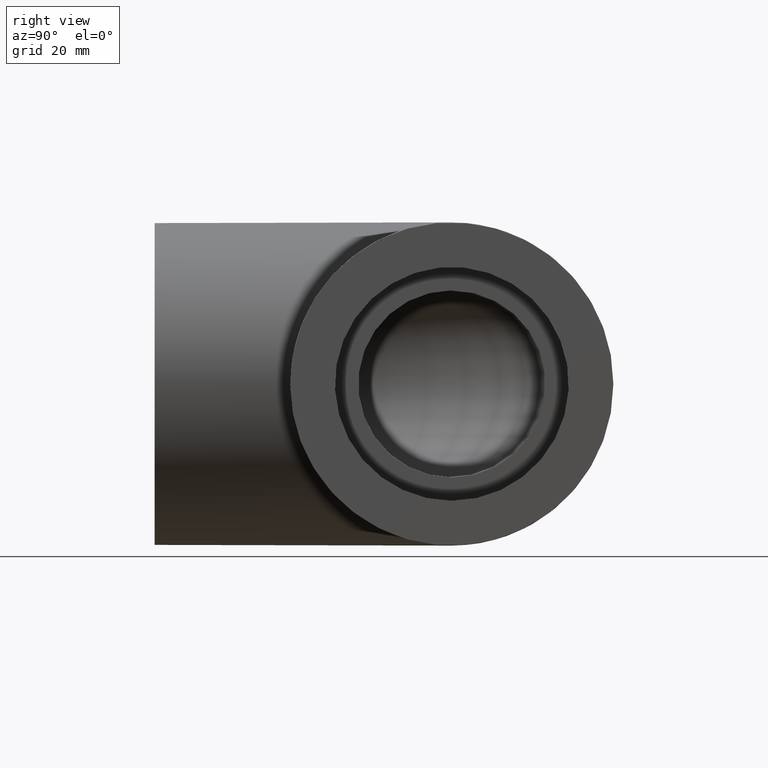
[diagram: clean part render]
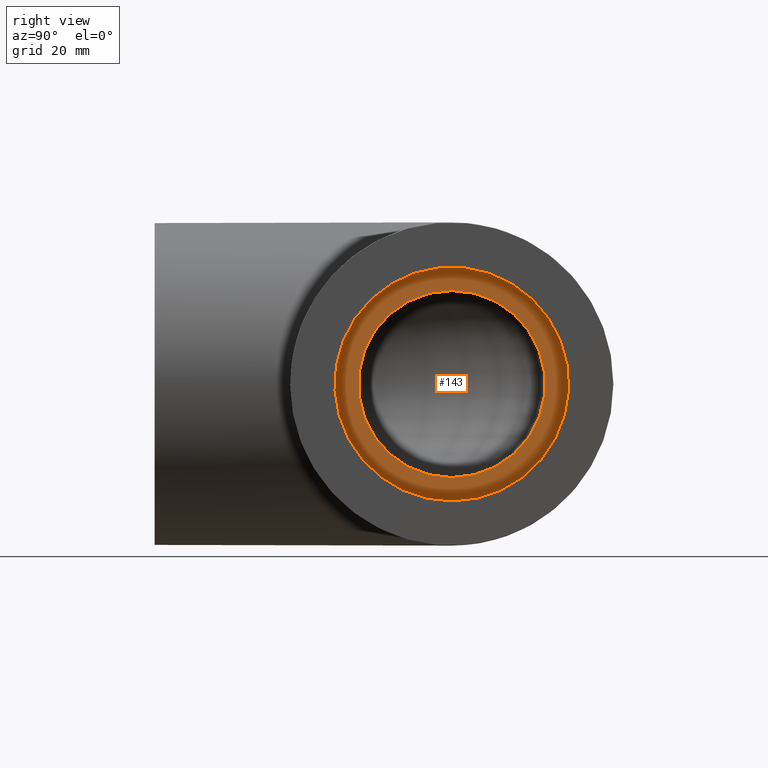
[diagram: same view with one face highlighted and labeled with its STEP entity id]
A machine part, right view. The second image highlights one B-rep face of the part: STEP entity #143.
In plain terms, the highlighted planar face has unit normal (1, 0, 0).
Its self-contained STEP definition (entity closure, byte-faithful):
#18=PLANE('',#165);
#28=FACE_BOUND('',#58,.T.);
#39=FACE_OUTER_BOUND('',#57,.T.);
#57=EDGE_LOOP('',(#117));
#58=EDGE_LOOP('',(#118));
#71=CIRCLE('',#157,17.938);
#74=CIRCLE('',#163,22.4225);
#83=VERTEX_POINT('',#238);
#86=VERTEX_POINT('',#247);
#95=EDGE_CURVE('',#83,#83,#71,.T.);
#98=EDGE_CURVE('',#86,#86,#74,.T.);
#117=ORIENTED_EDGE('',*,*,#98,.F.);
#118=ORIENTED_EDGE('',*,*,#95,.T.);
#143=ADVANCED_FACE('',(#39,#28),#18,.T.);
#157=AXIS2_PLACEMENT_3D('',#239,#190,#191);
#163=AXIS2_PLACEMENT_3D('',#248,#202,#203);
#165=AXIS2_PLACEMENT_3D('',#251,#206,#207);
#190=DIRECTION('center_axis',(-1.,0.,0.));
#191=DIRECTION('ref_axis',(0.,0.,1.));
#202=DIRECTION('center_axis',(-1.,0.,0.));
#203=DIRECTION('ref_axis',(0.,0.,1.));
#206=DIRECTION('center_axis',(1.,0.,0.));
#207=DIRECTION('ref_axis',(0.,0.,-1.));
#238=CARTESIAN_POINT('',(37.,2.19677142831052E-15,-17.938));
#239=CARTESIAN_POINT('Origin',(37.,8.32725808212508E-53,0.));
#247=CARTESIAN_POINT('',(37.,2.74596428538815E-15,-22.4225));
#248=CARTESIAN_POINT('Origin',(37.,0.,0.));
#251=CARTESIAN_POINT('Origin',(37.,3.30091953655229E-16,8.89014264426138E-16));